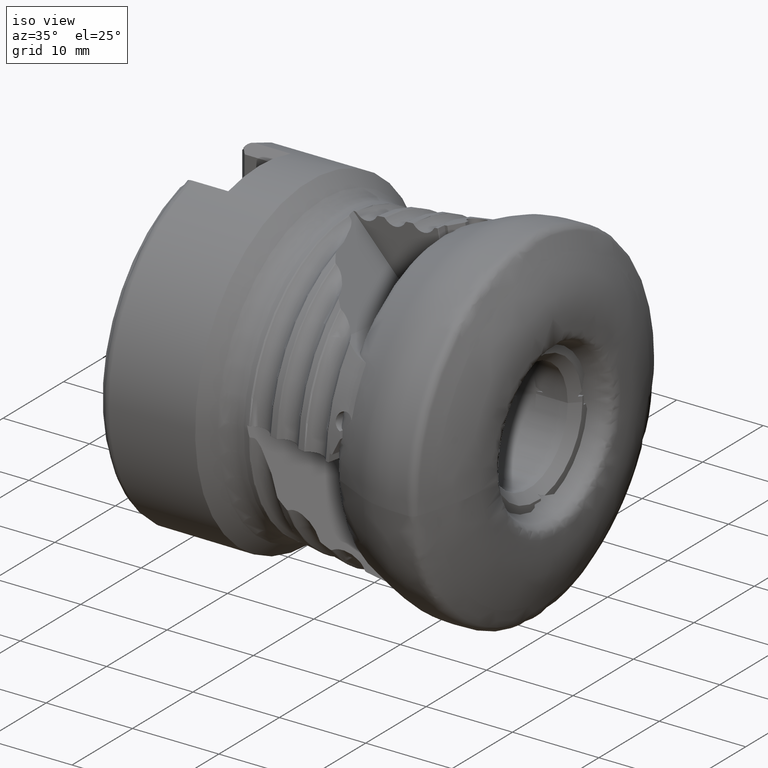
[diagram: clean part render]
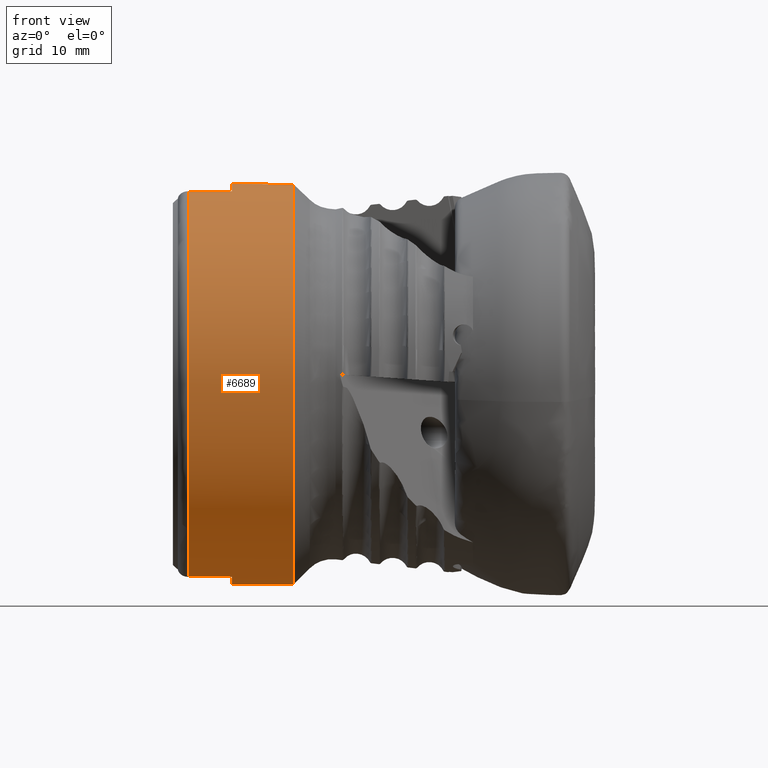
[diagram: tour spotlight — one face highlighted and labeled with its STEP entity id]
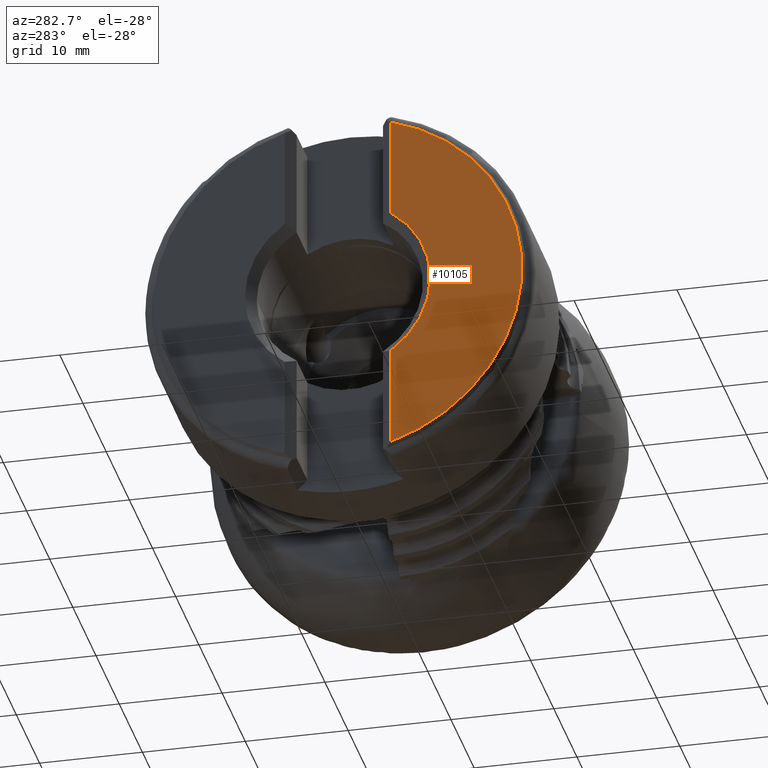
[diagram: tour spotlight — one face highlighted and labeled with its STEP entity id]
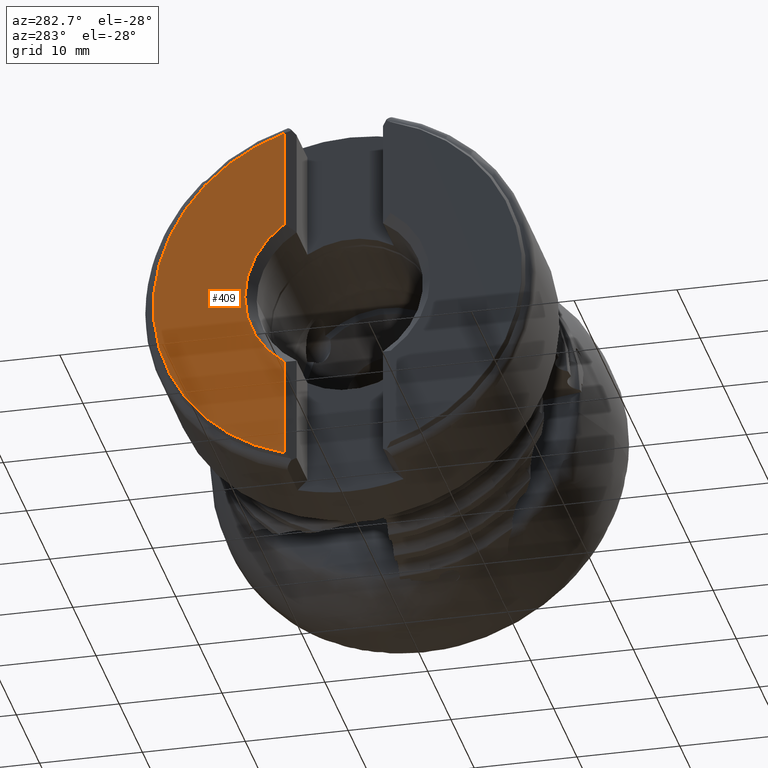
[diagram: tour spotlight — one face highlighted and labeled with its STEP entity id]
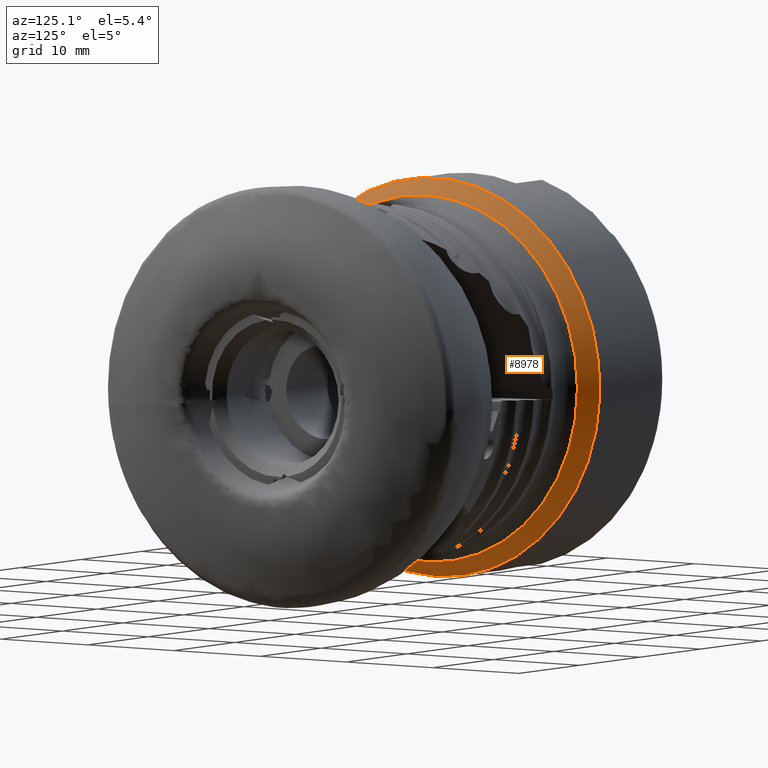
[diagram: tour spotlight — one face highlighted and labeled with its STEP entity id]
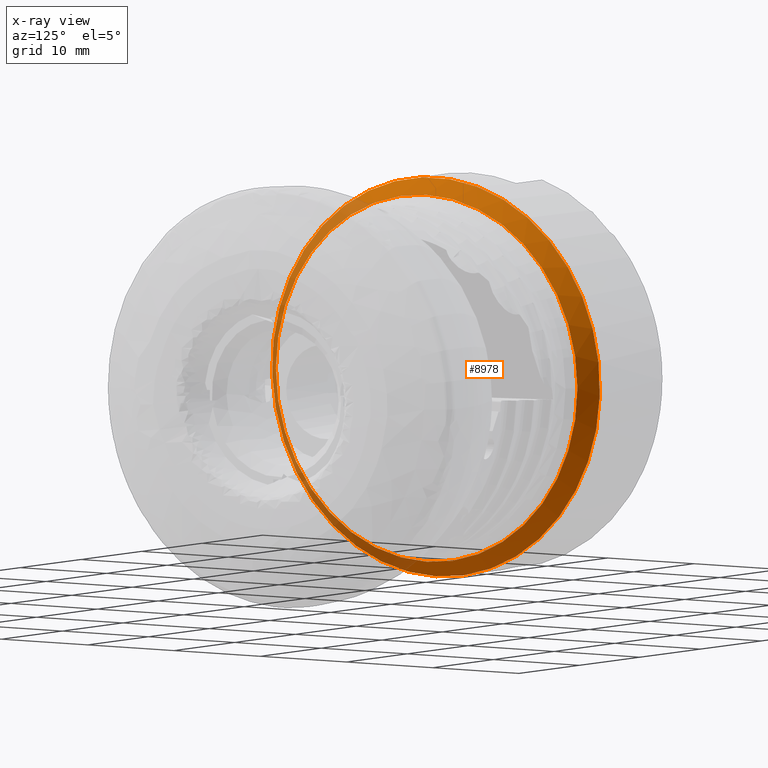
[diagram: x-ray of the same camera — body ghosted, this tour face saturated]
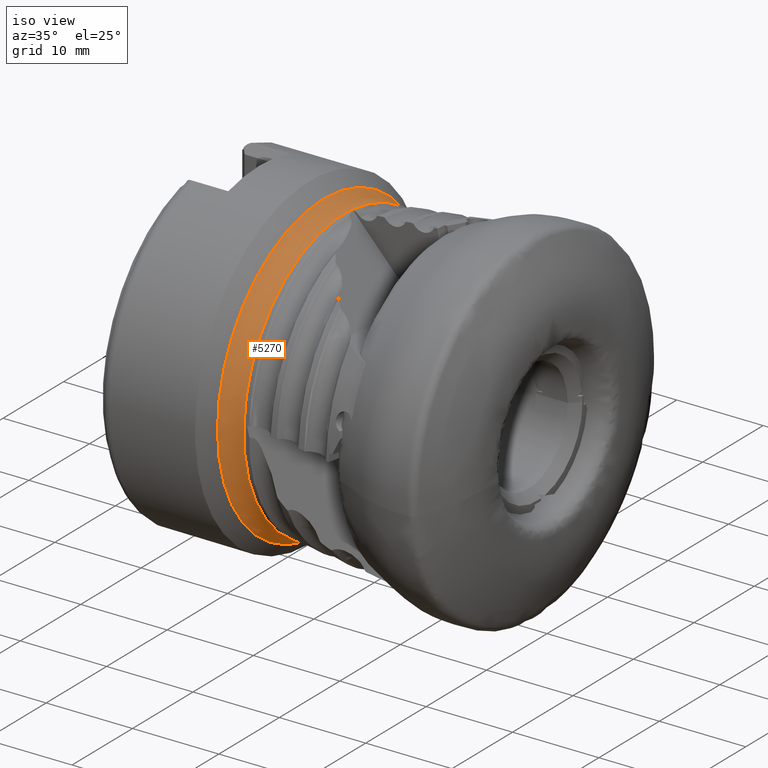
[diagram: tour spotlight — one face highlighted and labeled with its STEP entity id]
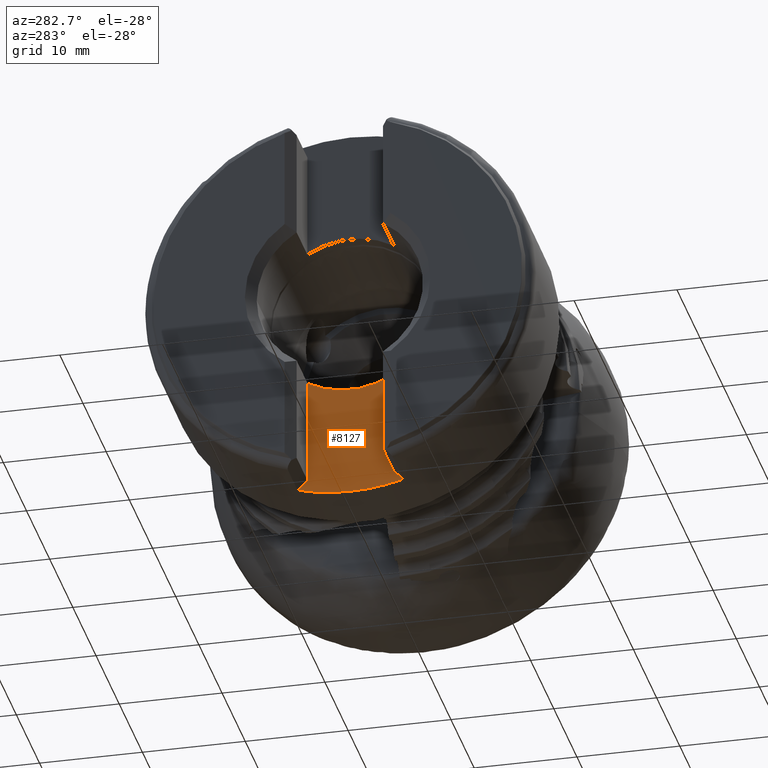
[diagram: tour spotlight — one face highlighted and labeled with its STEP entity id]
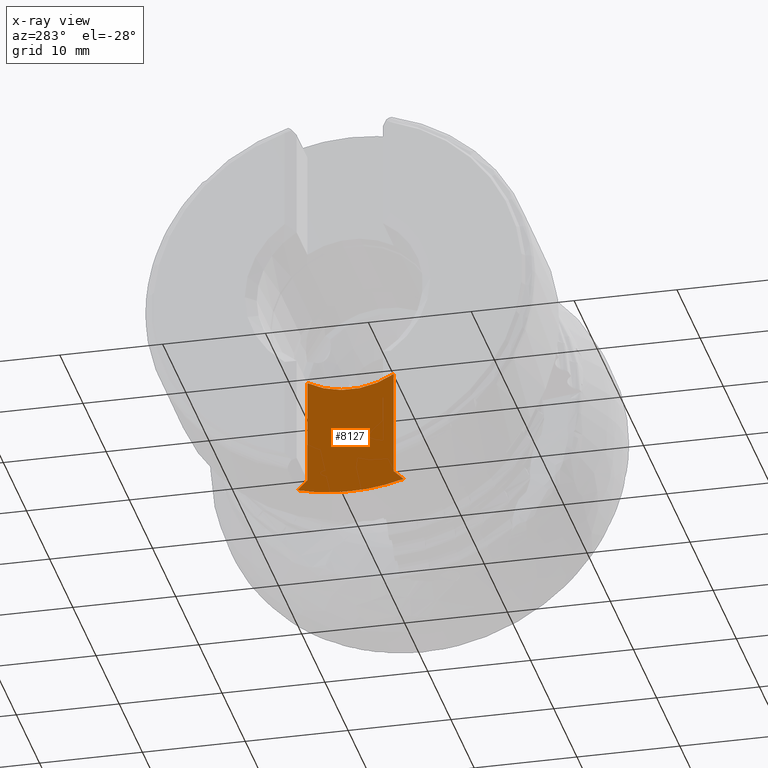
[diagram: x-ray of the same camera — body ghosted, this tour face saturated]
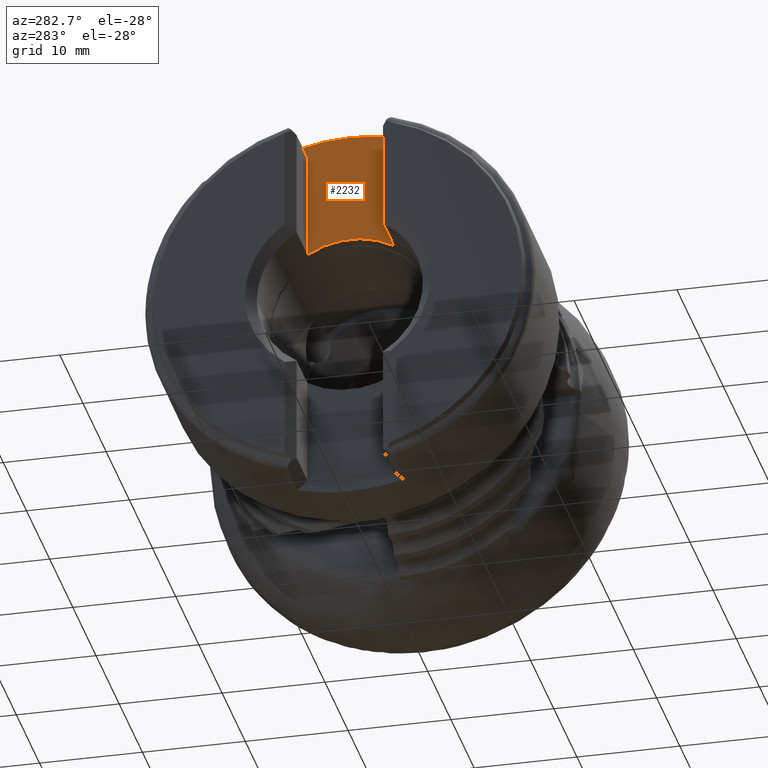
[diagram: tour spotlight — one face highlighted and labeled with its STEP entity id]
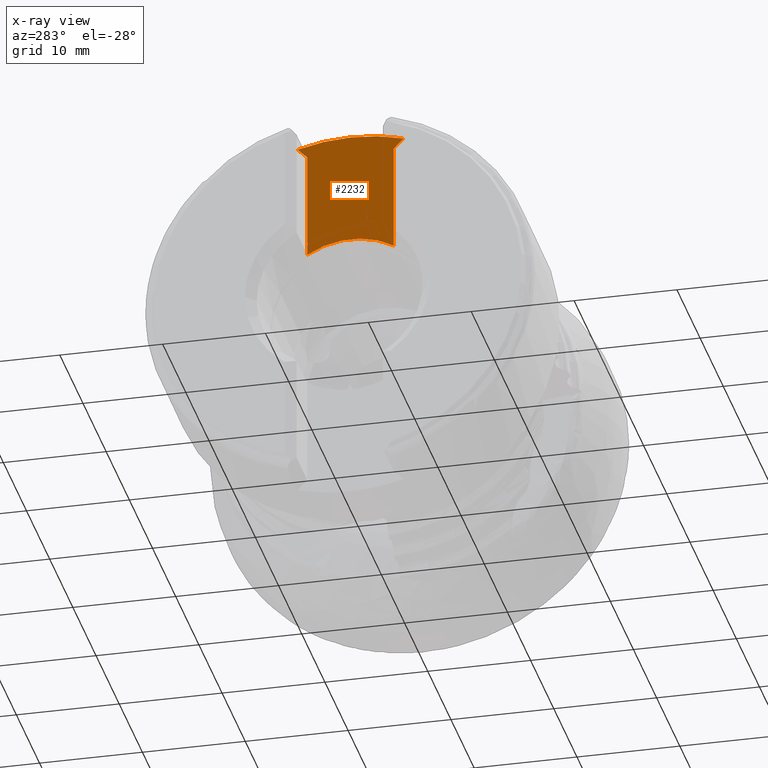
[diagram: x-ray of the same camera — body ghosted, this tour face saturated]
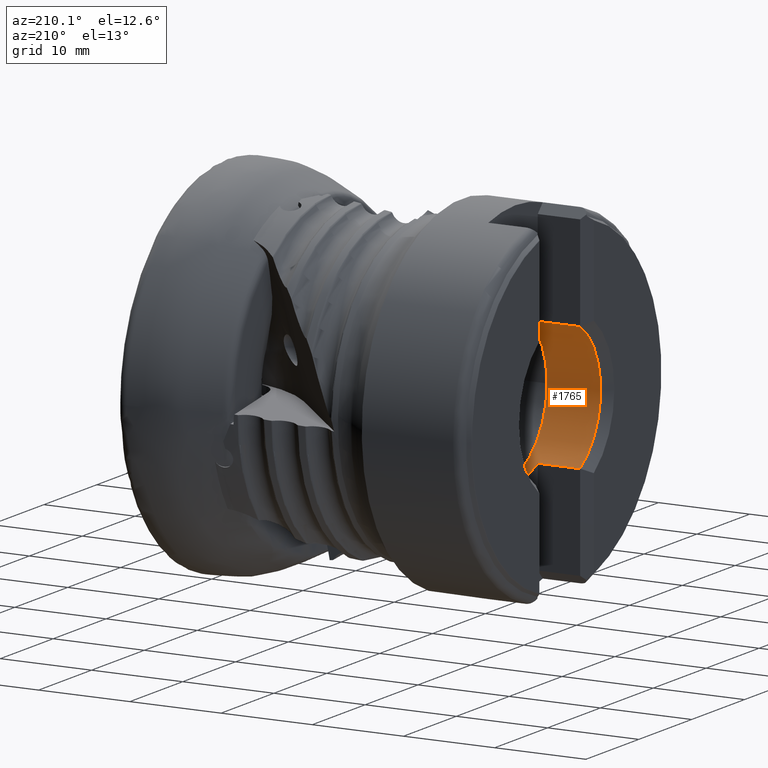
[diagram: tour spotlight — one face highlighted and labeled with its STEP entity id]
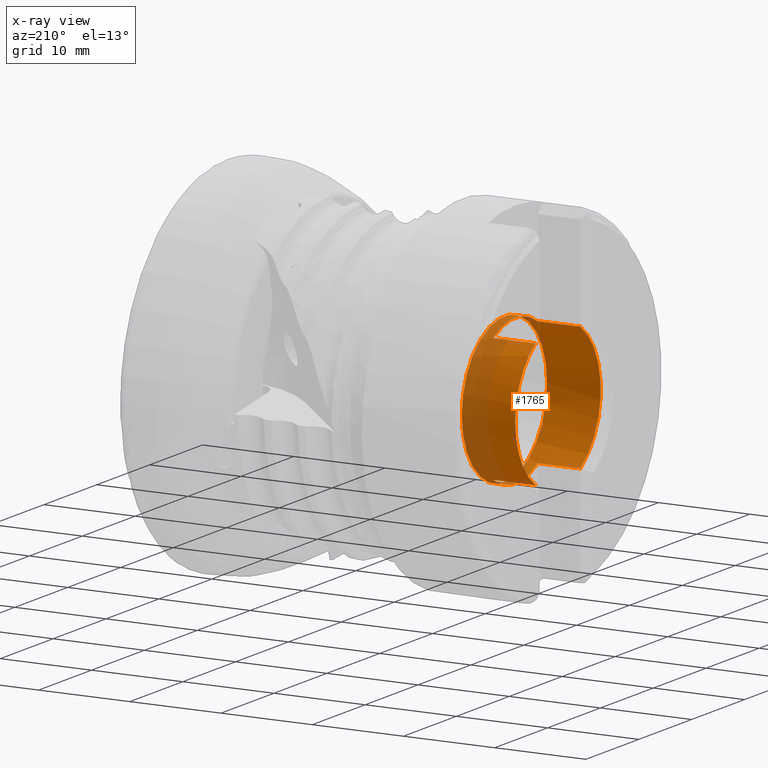
[diagram: x-ray of the same camera — body ghosted, this tour face saturated]
A machine part: a face-by-face anatomy tour. The part has 210 B-rep faces; the first image is the clean iso view, then the 8 largest visible faces are spotlighted one at a time (largest first), each with its STEP entity span.

Face 1 — front view, entity #6689. In plain terms, the highlighted cylindrical surface (bore or boss wall) has radius 19 mm, axis along (1, -0, -0).
Definition (entity closure, byte-faithful):
#51 = CARTESIAN_POINT ( 'NONE',  ( -27.45525917703946900, 0.0000000000000000000, 0.0000000000000000000 ) ) ;
#68 = EDGE_CURVE ( 'NONE', #3437, #1569, #3425, .T. ) ;
#271 = EDGE_CURVE ( 'NONE', #8111, #3437, #6373, .T. ) ;
#364 = CIRCLE ( 'NONE', #3989, 18.99999999999997500 ) ;
#368 = CARTESIAN_POINT ( 'NONE',  ( 0.0000000000000000000, 0.0000000000000000000, 0.0000000000000000000 ) ) ;
#519 = EDGE_CURVE ( 'NONE', #3034, #5623, #3052, .T. ) ;
#706 = CARTESIAN_POINT ( 'NONE',  ( -27.45525917703946900, 0.0000000000000000000, -18.99999999999997500 ) ) ;
#744 = CYLINDRICAL_SURFACE ( 'NONE', #9137, 18.99999999999997500 ) ;
#796 = CARTESIAN_POINT ( 'NONE',  ( -37.45525917703945900, 5.154084291463743000, 18.28757543023365500 ) ) ;
#827 = DIRECTION ( 'NONE',  ( 0.0000000000000000000, 0.0000000000000000000, -1.000000000000000000 ) ) ;
#922 = DIRECTION ( 'NONE',  ( -1.000000000000000000, 0.0000000000000000000, 0.0000000000000000000 ) ) ;
#973 = VECTOR ( 'NONE', #922, 1000.000000000000000 ) ;
#1038 = CARTESIAN_POINT ( 'NONE',  ( -37.45525917703945900, 5.154084291463743900, -18.28757543023366200 ) ) ;
#1067 = CARTESIAN_POINT ( 'NONE',  ( -1.176638563391784300E-030, -5.154084291463744800, -18.28757543023365900 ) ) ;
#1128 = EDGE_CURVE ( 'NONE', #5623, #5358, #10091, .T. ) ;
#1280 = DIRECTION ( 'NONE',  ( -1.000000000000000000, -0.0000000000000000000, -0.0000000000000000000 ) ) ;
#1294 = CARTESIAN_POINT ( 'NONE',  ( -37.45525917703945900, 0.0000000000000000000, 0.0000000000000000000 ) ) ;
#1335 = VECTOR ( 'NONE', #1853, 1000.000000000000000 ) ;
#1569 = VERTEX_POINT ( 'NONE', #6438 ) ;
#1598 = EDGE_CURVE ( 'Kante166', #5358, #7349, #8065, .T. ) ;
#1853 = DIRECTION ( 'NONE',  ( 1.000000000000000000, -0.0000000000000000000, -0.0000000000000000000 ) ) ;
#2085 = DIRECTION ( 'NONE',  ( 0.0000000000000000000, 0.0000000000000000000, -1.000000000000000000 ) ) ;
#2496 = CARTESIAN_POINT ( 'NONE',  ( -33.30525917703945300, 5.154084291463743000, -18.28757543023365900 ) ) ;
#2531 = CARTESIAN_POINT ( 'NONE',  ( -1.176638563391784300E-030, 5.154084291463737700, 18.28757543023365900 ) ) ;
#2553 = EDGE_CURVE ( 'NONE', #4841, #4841, #8568, .T. ) ;
#2633 = ORIENTED_EDGE ( 'NONE', *, *, #4658, .T. ) ;
#2637 = DIRECTION ( 'NONE',  ( 1.000000000000000000, -0.0000000000000000000, -0.0000000000000000000 ) ) ;
#2789 = ORIENTED_EDGE ( 'NONE', *, *, #7168, .F. ) ;
#2839 = AXIS2_PLACEMENT_3D ( 'NONE', #7330, #2637, #8128 ) ;
#2880 = CARTESIAN_POINT ( 'NONE',  ( -33.30525917703945300, 0.0000000000000000000, 0.0000000000000000000 ) ) ;
#3034 = VERTEX_POINT ( 'NONE', #2496 ) ;
#3052 = LINE ( 'NONE', #6374, #973 ) ;
#3073 = CARTESIAN_POINT ( 'NONE',  ( -33.30525917703945300, 5.154084291463743000, 18.28757543023365500 ) ) ;
#3084 = FACE_OUTER_BOUND ( 'NONE', #5858, .T. ) ;
#3160 = ORIENTED_EDGE ( 'NONE', *, *, #1598, .T. ) ;
#3403 = VECTOR ( 'NONE', #7260, 1000.000000000000000 ) ;
#3425 = LINE ( 'NONE', #1067, #1335 ) ;
#3437 = VERTEX_POINT ( 'NONE', #9297 ) ;
#3663 = DIRECTION ( 'NONE',  ( 0.0000000000000000000, 0.0000000000000000000, -1.000000000000000000 ) ) ;
#3872 = VECTOR ( 'NONE', #6270, 1000.000000000000000 ) ;
#3989 = AXIS2_PLACEMENT_3D ( 'NONE', #5979, #1280, #6755 ) ;
#4042 = EDGE_LOOP ( 'NONE', ( #8510 ) ) ;
#4139 = CARTESIAN_POINT ( 'NONE',  ( -37.45525917703945900, -5.154084291463749200, 18.28757543023365500 ) ) ;
#4459 = AXIS2_PLACEMENT_3D ( 'NONE', #1294, #6766, #2085 ) ;
#4658 = EDGE_CURVE ( 'NONE', #6695, #8111, #9923, .T. ) ;
#4805 = ORIENTED_EDGE ( 'NONE', *, *, #68, .T. ) ;
#4841 = VERTEX_POINT ( 'NONE', #706 ) ;
#4863 = AXIS2_PLACEMENT_3D ( 'NONE', #51, #5531, #827 ) ;
#5065 = DIRECTION ( 'NONE',  ( 1.000000000000000000, -0.0000000000000000000, -0.0000000000000000000 ) ) ;
#5358 = VERTEX_POINT ( 'NONE', #796 ) ;
#5531 = DIRECTION ( 'NONE',  ( 1.000000000000000000, -0.0000000000000000000, -0.0000000000000000000 ) ) ;
#5558 = CARTESIAN_POINT ( 'NONE',  ( -1.344729786733467900E-030, -5.154084291463744800, 18.28757543023366200 ) ) ;
#5623 = VERTEX_POINT ( 'NONE', #1038 ) ;
#5772 = ORIENTED_EDGE ( 'NONE', *, *, #1128, .T. ) ;
#5858 = EDGE_LOOP ( 'NONE', ( #5772, #3160, #2789, #2633, #9954, #4805, #6090, #7584 ) ) ;
#5979 = CARTESIAN_POINT ( 'NONE',  ( -33.30525917703945300, 0.0000000000000000000, 0.0000000000000000000 ) ) ;
#6090 = ORIENTED_EDGE ( 'NONE', *, *, #6165, .F. ) ;
#6165 = EDGE_CURVE ( 'Kante164', #3034, #1569, #8995, .T. ) ;
#6270 = DIRECTION ( 'NONE',  ( -1.000000000000000000, 0.0000000000000000000, 0.0000000000000000000 ) ) ;
#6373 = CIRCLE ( 'NONE', #4459, 18.99999999999997500 ) ;
#6374 = CARTESIAN_POINT ( 'NONE',  ( -1.344729786733467900E-030, 5.154084291463736800, -18.28757543023366200 ) ) ;
#6438 = CARTESIAN_POINT ( 'NONE',  ( -33.30525917703945300, -5.154084291463750100, -18.28757543023365500 ) ) ;
#6689 = ADVANCED_FACE ( 'NONE', ( #3084, #6987 ), #744, .T. ) ;
#6695 = VERTEX_POINT ( 'NONE', #9040 ) ;
#6755 = DIRECTION ( 'NONE',  ( 0.0000000000000000000, 3.552713678800500900E-015, -1.000000000000000000 ) ) ;
#6766 = DIRECTION ( 'NONE',  ( 1.000000000000000000, -0.0000000000000000000, -0.0000000000000000000 ) ) ;
#6987 = FACE_OUTER_BOUND ( 'NONE', #4042, .T. ) ;
#7168 = EDGE_CURVE ( 'NONE', #6695, #7349, #364, .T. ) ;
#7260 = DIRECTION ( 'NONE',  ( 1.000000000000000000, -0.0000000000000000000, -0.0000000000000000000 ) ) ;
#7330 = CARTESIAN_POINT ( 'NONE',  ( -37.45525917703945900, 0.0000000000000000000, 0.0000000000000000000 ) ) ;
#7349 = VERTEX_POINT ( 'NONE', #3073 ) ;
#7584 = ORIENTED_EDGE ( 'NONE', *, *, #519, .T. ) ;
#8065 = LINE ( 'NONE', #2531, #3403 ) ;
#8111 = VERTEX_POINT ( 'NONE', #4139 ) ;
#8128 = DIRECTION ( 'NONE',  ( 0.0000000000000000000, 0.0000000000000000000, -1.000000000000000000 ) ) ;
#8226 = DIRECTION ( 'NONE',  ( 0.0000000000000000000, 0.0000000000000000000, -1.000000000000000000 ) ) ;
#8247 = AXIS2_PLACEMENT_3D ( 'NONE', #2880, #8372, #3663 ) ;
#8372 = DIRECTION ( 'NONE',  ( -1.000000000000000000, -0.0000000000000000000, -0.0000000000000000000 ) ) ;
#8510 = ORIENTED_EDGE ( 'NONE', *, *, #2553, .F. ) ;
#8568 = CIRCLE ( 'NONE', #4863, 18.99999999999997500 ) ;
#8995 = CIRCLE ( 'NONE', #8247, 18.99999999999997500 ) ;
#9040 = CARTESIAN_POINT ( 'NONE',  ( -33.30525917703945300, -5.154084291463749200, 18.28757543023365500 ) ) ;
#9137 = AXIS2_PLACEMENT_3D ( 'NONE', #368, #5065, #8226 ) ;
#9297 = CARTESIAN_POINT ( 'NONE',  ( -37.45525917703945900, -5.154084291463751000, -18.28757543023365500 ) ) ;
#9923 = LINE ( 'NONE', #5558, #3872 ) ;
#9954 = ORIENTED_EDGE ( 'NONE', *, *, #271, .T. ) ;
#10091 = CIRCLE ( 'NONE', #2839, 18.99999999999997500 ) ;

Face 2 — auxiliary view, entity #10105. In plain terms, the highlighted planar face has unit normal (-1, 0, 0).
Definition (entity closure, byte-faithful):
#88 = VECTOR ( 'NONE', #9777, 1000.000000000000000 ) ;
#186 = CARTESIAN_POINT ( 'NONE',  ( -38.90525917703945400, -5.150000000000020800, -7.411351091400261400 ) ) ;
#264 = CARTESIAN_POINT ( 'NONE',  ( -38.90525917703945400, -5.150000000000020800, 7.411351091400262300 ) ) ;
#939 = ORIENTED_EDGE ( 'NONE', *, *, #2490, .T. ) ;
#958 = LINE ( 'NONE', #5397, #8820 ) ;
#1093 = CIRCLE ( 'NONE', #9093, 17.92228756555322300 ) ;
#1287 = CARTESIAN_POINT ( 'NONE',  ( -38.90525917703945400, -5.150000000000020800, -17.16641755237194300 ) ) ;
#1322 = CARTESIAN_POINT ( 'NONE',  ( -38.90525917703945400, 0.0000000000000000000, 0.0000000000000000000 ) ) ;
#2153 = LINE ( 'NONE', #8230, #88 ) ;
#2299 = AXIS2_PLACEMENT_3D ( 'NONE', #1322, #2936, #8419 ) ;
#2490 = EDGE_CURVE ( 'NONE', #8800, #3760, #958, .T. ) ;
#2766 = ORIENTED_EDGE ( 'NONE', *, *, #9089, .F. ) ;
#2936 = DIRECTION ( 'NONE',  ( -1.000000000000000000, 0.0000000000000000000, 0.0000000000000000000 ) ) ;
#3024 = CIRCLE ( 'NONE', #8707, 9.025000000000003900 ) ;
#3055 = CARTESIAN_POINT ( 'NONE',  ( -38.90525917703946100, -5.150000000000031400, 17.16641755237192900 ) ) ;
#3264 = DIRECTION ( 'NONE',  ( 1.000000000000000000, -0.0000000000000000000, -0.0000000000000000000 ) ) ;
#3346 = EDGE_CURVE ( 'NONE', #4910, #8800, #3024, .T. ) ;
#3612 = DIRECTION ( 'NONE',  ( 1.000000000000000000, -0.0000000000000000000, -0.0000000000000000000 ) ) ;
#3760 = VERTEX_POINT ( 'NONE', #1287 ) ;
#3885 = EDGE_LOOP ( 'NONE', ( #939, #2766, #5571, #6699 ) ) ;
#4910 = VERTEX_POINT ( 'NONE', #264 ) ;
#5397 = CARTESIAN_POINT ( 'NONE',  ( -38.90525917703945400, -5.150000000000020800, -35.00000000000000000 ) ) ;
#5571 = ORIENTED_EDGE ( 'NONE', *, *, #9275, .T. ) ;
#6174 = DIRECTION ( 'NONE',  ( 0.0000000000000000000, 0.0000000000000000000, -1.000000000000000000 ) ) ;
#6326 = VERTEX_POINT ( 'NONE', #3055 ) ;
#6699 = ORIENTED_EDGE ( 'NONE', *, *, #3346, .T. ) ;
#7630 = PLANE ( 'NONE',  #2299 ) ;
#7961 = CARTESIAN_POINT ( 'NONE',  ( -38.90525917703945400, 0.0000000000000000000, 0.0000000000000000000 ) ) ;
#8230 = CARTESIAN_POINT ( 'NONE',  ( -38.90525917703945400, -5.150000000000020800, -35.00000000000000000 ) ) ;
#8319 = CARTESIAN_POINT ( 'NONE',  ( -38.90525917703945400, -3.011444463842724400E-032, 1.424499028242644900E-031 ) ) ;
#8419 = DIRECTION ( 'NONE',  ( 0.0000000000000000000, 0.0000000000000000000, 1.000000000000000000 ) ) ;
#8707 = AXIS2_PLACEMENT_3D ( 'NONE', #8319, #3612, #9146 ) ;
#8766 = DIRECTION ( 'NONE',  ( 0.0000000000000000000, 0.0000000000000000000, 1.000000000000000000 ) ) ;
#8800 = VERTEX_POINT ( 'NONE', #186 ) ;
#8820 = VECTOR ( 'NONE', #6174, 1000.000000000000000 ) ;
#9089 = EDGE_CURVE ( 'NONE', #6326, #3760, #1093, .T. ) ;
#9093 = AXIS2_PLACEMENT_3D ( 'NONE', #7961, #3264, #8766 ) ;
#9146 = DIRECTION ( 'NONE',  ( 0.0000000000000000000, 0.0000000000000000000, 1.000000000000000000 ) ) ;
#9275 = EDGE_CURVE ( 'NONE', #6326, #4910, #2153, .T. ) ;
#9564 = FACE_OUTER_BOUND ( 'NONE', #3885, .T. ) ;
#9777 = DIRECTION ( 'NONE',  ( 0.0000000000000000000, 0.0000000000000000000, -1.000000000000000000 ) ) ;
#10105 = ADVANCED_FACE ( 'NONE', ( #9564 ), #7630, .T. ) ;

Face 3 — auxiliary view, entity #409. In plain terms, the highlighted planar face has unit normal (-1, 0, 0).
Definition (entity closure, byte-faithful):
#343 = ORIENTED_EDGE ( 'NONE', *, *, #3350, .T. ) ;
#409 = ADVANCED_FACE ( 'NONE', ( #3789 ), #1472, .T. ) ;
#597 = AXIS2_PLACEMENT_3D ( 'NONE', #6898, #2258, #7749 ) ;
#692 = CIRCLE ( 'NONE', #2704, 9.025000000000003900 ) ;
#833 = LINE ( 'NONE', #8184, #6822 ) ;
#945 = LINE ( 'NONE', #1258, #3277 ) ;
#1041 = VERTEX_POINT ( 'NONE', #9667 ) ;
#1258 = CARTESIAN_POINT ( 'NONE',  ( -38.90525917703945400, 5.150000000000010100, -35.00000000000000000 ) ) ;
#1265 = CARTESIAN_POINT ( 'NONE',  ( -38.90525917703945400, 5.150000000000010100, -17.16641755237194300 ) ) ;
#1472 = PLANE ( 'NONE',  #597 ) ;
#1742 = ORIENTED_EDGE ( 'NONE', *, *, #3475, .T. ) ;
#1785 = EDGE_CURVE ( 'NONE', #1041, #2405, #833, .T. ) ;
#1880 = VERTEX_POINT ( 'NONE', #1265 ) ;
#1906 = DIRECTION ( 'NONE',  ( 0.0000000000000000000, -0.0000000000000000000, 1.000000000000000000 ) ) ;
#2089 = DIRECTION ( 'NONE',  ( 1.000000000000000000, -0.0000000000000000000, -0.0000000000000000000 ) ) ;
#2126 = AXIS2_PLACEMENT_3D ( 'NONE', #6768, #2089, #7576 ) ;
#2258 = DIRECTION ( 'NONE',  ( -1.000000000000000000, 0.0000000000000000000, 0.0000000000000000000 ) ) ;
#2262 = CARTESIAN_POINT ( 'NONE',  ( -38.90525917703945400, -3.011444463842724400E-032, 1.424499028242644900E-031 ) ) ;
#2405 = VERTEX_POINT ( 'NONE', #4485 ) ;
#2704 = AXIS2_PLACEMENT_3D ( 'NONE', #2262, #7756, #3051 ) ;
#3051 = DIRECTION ( 'NONE',  ( 0.0000000000000000000, 0.0000000000000000000, 1.000000000000000000 ) ) ;
#3277 = VECTOR ( 'NONE', #5945, 1000.000000000000000 ) ;
#3350 = EDGE_CURVE ( 'NONE', #1880, #6844, #945, .T. ) ;
#3475 = EDGE_CURVE ( 'NONE', #6844, #1041, #692, .T. ) ;
#3720 = CARTESIAN_POINT ( 'NONE',  ( -38.90525917703945400, 5.150000000000010100, -7.411351091400269400 ) ) ;
#3789 = FACE_OUTER_BOUND ( 'NONE', #7058, .T. ) ;
#4218 = ORIENTED_EDGE ( 'NONE', *, *, #1785, .T. ) ;
#4485 = CARTESIAN_POINT ( 'NONE',  ( -38.90525917703945400, 5.150000000000010100, 17.16641755237194300 ) ) ;
#4752 = ORIENTED_EDGE ( 'NONE', *, *, #5786, .F. ) ;
#5786 = EDGE_CURVE ( 'Kante161', #1880, #2405, #9674, .T. ) ;
#5945 = DIRECTION ( 'NONE',  ( 0.0000000000000000000, -0.0000000000000000000, 1.000000000000000000 ) ) ;
#6768 = CARTESIAN_POINT ( 'NONE',  ( -38.90525917703945400, 0.0000000000000000000, 0.0000000000000000000 ) ) ;
#6822 = VECTOR ( 'NONE', #1906, 1000.000000000000000 ) ;
#6844 = VERTEX_POINT ( 'NONE', #3720 ) ;
#6898 = CARTESIAN_POINT ( 'NONE',  ( -38.90525917703945400, 0.0000000000000000000, 0.0000000000000000000 ) ) ;
#7058 = EDGE_LOOP ( 'NONE', ( #343, #1742, #4218, #4752 ) ) ;
#7576 = DIRECTION ( 'NONE',  ( 0.0000000000000000000, 0.0000000000000000000, 1.000000000000000000 ) ) ;
#7749 = DIRECTION ( 'NONE',  ( 0.0000000000000000000, 0.0000000000000000000, 1.000000000000000000 ) ) ;
#7756 = DIRECTION ( 'NONE',  ( 1.000000000000000000, -0.0000000000000000000, -0.0000000000000000000 ) ) ;
#8184 = CARTESIAN_POINT ( 'NONE',  ( -38.90525917703945400, 5.150000000000010100, -35.00000000000000000 ) ) ;
#9667 = CARTESIAN_POINT ( 'NONE',  ( -38.90525917703945400, 5.150000000000010100, 7.411351091400270300 ) ) ;
#9674 = CIRCLE ( 'NONE', #2126, 17.92228756555322300 ) ;

Face 4 — auxiliary view, entity #8978. An x-ray twin of the same camera follows (body ghosted, this face saturated) — the face is partly hidden behind the body. In plain terms, the highlighted conical surface has half-angle 44.691 deg.
Definition (entity closure, byte-faithful):
#51 = CARTESIAN_POINT ( 'NONE',  ( -27.45525917703946900, 0.0000000000000000000, 0.0000000000000000000 ) ) ;
#366 = ORIENTED_EDGE ( 'NONE', *, *, #7074, .F. ) ;
#592 = CONICAL_SURFACE ( 'NONE', #8010, 17.48087253499999600, 0.7800126432564450400 ) ;
#706 = CARTESIAN_POINT ( 'NONE',  ( -27.45525917703946900, 0.0000000000000000000, -18.99999999999997500 ) ) ;
#827 = DIRECTION ( 'NONE',  ( 0.0000000000000000000, 0.0000000000000000000, -1.000000000000000000 ) ) ;
#845 = FACE_BOUND ( 'NONE', #9545, .T. ) ;
#1186 = CARTESIAN_POINT ( 'NONE',  ( -25.91968037084017200, 0.0000000000000000000, 0.0000000000000000000 ) ) ;
#1873 = AXIS2_PLACEMENT_3D ( 'NONE', #1186, #6653, #1975 ) ;
#1975 = DIRECTION ( 'NONE',  ( 0.0000000000000000000, 0.0000000000000000000, -1.000000000000000000 ) ) ;
#2553 = EDGE_CURVE ( 'NONE', #4841, #4841, #8568, .T. ) ;
#2925 = FACE_OUTER_BOUND ( 'NONE', #10070, .T. ) ;
#4496 = ORIENTED_EDGE ( 'NONE', *, *, #2553, .T. ) ;
#4536 = CIRCLE ( 'NONE', #1873, 17.48087253499999600 ) ;
#4841 = VERTEX_POINT ( 'NONE', #706 ) ;
#4863 = AXIS2_PLACEMENT_3D ( 'NONE', #51, #5531, #827 ) ;
#5531 = DIRECTION ( 'NONE',  ( 1.000000000000000000, -0.0000000000000000000, -0.0000000000000000000 ) ) ;
#6251 = DIRECTION ( 'NONE',  ( 0.0000000000000000000, 0.0000000000000000000, 1.000000000000000000 ) ) ;
#6653 = DIRECTION ( 'NONE',  ( 1.000000000000000000, -0.0000000000000000000, -0.0000000000000000000 ) ) ;
#6664 = VERTEX_POINT ( 'NONE', #7772 ) ;
#6907 = CARTESIAN_POINT ( 'NONE',  ( -25.91968037084017200, 0.0000000000000000000, 0.0000000000000000000 ) ) ;
#7074 = EDGE_CURVE ( 'NONE', #6664, #6664, #4536, .T. ) ;
#7772 = CARTESIAN_POINT ( 'NONE',  ( -25.91968037084017200, 0.0000000000000000000, -17.48087253499999600 ) ) ;
#7829 = DIRECTION ( 'NONE',  ( -1.000000000000000000, 0.0000000000000000000, 0.0000000000000000000 ) ) ;
#8010 = AXIS2_PLACEMENT_3D ( 'NONE', #6907, #7829, #6251 ) ;
#8568 = CIRCLE ( 'NONE', #4863, 18.99999999999997500 ) ;
#8978 = ADVANCED_FACE ( 'NONE', ( #2925, #845 ), #592, .T. ) ;
#9545 = EDGE_LOOP ( 'NONE', ( #366 ) ) ;
#10070 = EDGE_LOOP ( 'NONE', ( #4496 ) ) ;

Face 5 — iso view, entity #5270. In plain terms, the highlighted toroidal blend (fillet) surface has major radius 19.6136 mm and minor (blend) radius 3 mm.
Definition (entity closure, byte-faithful):
#209 = EDGE_LOOP ( 'NONE', ( #3427 ) ) ;
#330 = CIRCLE ( 'NONE', #8965, 16.63267273497152100 ) ;
#646 = DIRECTION ( 'NONE',  ( 0.0000000000000000000, 0.0000000000000000000, -1.000000000000000000 ) ) ;
#1186 = CARTESIAN_POINT ( 'NONE',  ( -25.91968037084017200, 0.0000000000000000000, 0.0000000000000000000 ) ) ;
#1873 = AXIS2_PLACEMENT_3D ( 'NONE', #1186, #6653, #1975 ) ;
#1964 = EDGE_CURVE ( 'NONE', #5087, #5087, #330, .T. ) ;
#1975 = DIRECTION ( 'NONE',  ( 0.0000000000000000000, 0.0000000000000000000, -1.000000000000000000 ) ) ;
#3427 = ORIENTED_EDGE ( 'NONE', *, *, #7074, .T. ) ;
#4063 = ORIENTED_EDGE ( 'NONE', *, *, #1964, .F. ) ;
#4536 = CIRCLE ( 'NONE', #1873, 17.48087253499999600 ) ;
#5087 = VERTEX_POINT ( 'NONE', #5416 ) ;
#5270 = ADVANCED_FACE ( 'NONE', ( #7660, #7405 ), #5338, .F. ) ;
#5338 = TOROIDAL_SURFACE ( 'NONE', #8302, 19.61358647364021500, 2.999999999999998200 ) ;
#5341 = DIRECTION ( 'NONE',  ( 1.000000000000000000, -0.0000000000000000000, -0.0000000000000000000 ) ) ;
#5416 = CARTESIAN_POINT ( 'NONE',  ( -23.47194937258531100, 0.0000000000000000000, -16.63267273497152100 ) ) ;
#6653 = DIRECTION ( 'NONE',  ( 1.000000000000000000, -0.0000000000000000000, -0.0000000000000000000 ) ) ;
#6664 = VERTEX_POINT ( 'NONE', #7772 ) ;
#7074 = EDGE_CURVE ( 'NONE', #6664, #6664, #4536, .T. ) ;
#7405 = FACE_OUTER_BOUND ( 'NONE', #9329, .T. ) ;
#7660 = FACE_OUTER_BOUND ( 'NONE', #209, .T. ) ;
#7689 = CARTESIAN_POINT ( 'NONE',  ( -23.80981514862106300, 0.0000000000000000000, 0.0000000000000000000 ) ) ;
#7772 = CARTESIAN_POINT ( 'NONE',  ( -25.91968037084017200, 0.0000000000000000000, -17.48087253499999600 ) ) ;
#8302 = AXIS2_PLACEMENT_3D ( 'NONE', #7689, #9351, #10155 ) ;
#8965 = AXIS2_PLACEMENT_3D ( 'NONE', #10089, #5341, #646 ) ;
#9329 = EDGE_LOOP ( 'NONE', ( #4063 ) ) ;
#9351 = DIRECTION ( 'NONE',  ( 1.000000000000000000, -0.0000000000000000000, -0.0000000000000000000 ) ) ;
#10089 = CARTESIAN_POINT ( 'NONE',  ( -23.47194937258531100, 0.0000000000000000000, 0.0000000000000000000 ) ) ;
#10155 = DIRECTION ( 'NONE',  ( 0.0000000000000000000, 0.0000000000000000000, -1.000000000000000000 ) ) ;

Face 6 — auxiliary view, entity #8127. An x-ray twin of the same camera follows (body ghosted, this face saturated) — the face is partly hidden behind the body. In plain terms, the highlighted planar face has unit normal (1, 0, 0).
Definition (entity closure, byte-faithful):
#118 = LINE ( 'NONE', #8097, #1704 ) ;
#327 = ORIENTED_EDGE ( 'NONE', *, *, #1111, .F. ) ;
#467 = CARTESIAN_POINT ( 'NONE',  ( -33.30525917703945300, 4.199999999999995700, -17.32582944009227400 ) ) ;
#517 = DIRECTION ( 'NONE',  ( -0.0000000000000000000, 0.7042733211068733500, -0.7099289324834526800 ) ) ;
#584 = CARTESIAN_POINT ( 'NONE',  ( -33.30525917703945300, -8.870394966561589100, -22.03372964519465100 ) ) ;
#642 = CARTESIAN_POINT ( 'NONE',  ( -33.30525917703945300, 4.199999999999995700, -6.896783670668521700 ) ) ;
#801 = ORIENTED_EDGE ( 'NONE', *, *, #6236, .T. ) ;
#1045 = PLANE ( 'NONE',  #6009 ) ;
#1111 = EDGE_CURVE ( 'NONE', #4255, #7862, #118, .T. ) ;
#1365 = ORIENTED_EDGE ( 'NONE', *, *, #8283, .F. ) ;
#1372 = DIRECTION ( 'NONE',  ( -0.0000000000000000000, 0.7042733211068702400, 0.7099289324834557900 ) ) ;
#1569 = VERTEX_POINT ( 'NONE', #6438 ) ;
#1704 = VECTOR ( 'NONE', #3398, 1000.000000000000000 ) ;
#1835 = DIRECTION ( 'NONE',  ( 1.000000000000000000, 0.0000000000000000000, 0.0000000000000000000 ) ) ;
#2083 = AXIS2_PLACEMENT_3D ( 'NONE', #7648, #2964, #8449 ) ;
#2288 = ORIENTED_EDGE ( 'NONE', *, *, #6165, .T. ) ;
#2496 = CARTESIAN_POINT ( 'NONE',  ( -33.30525917703945300, 5.154084291463743000, -18.28757543023365900 ) ) ;
#2710 = LINE ( 'NONE', #584, #8484 ) ;
#2880 = CARTESIAN_POINT ( 'NONE',  ( -33.30525917703945300, 0.0000000000000000000, 0.0000000000000000000 ) ) ;
#2964 = DIRECTION ( 'NONE',  ( -1.000000000000000000, -0.0000000000000000000, -0.0000000000000000000 ) ) ;
#3034 = VERTEX_POINT ( 'NONE', #2496 ) ;
#3132 = CARTESIAN_POINT ( 'NONE',  ( -33.30525917703945300, -4.200000000000003700, -6.896783670668520800 ) ) ;
#3398 = DIRECTION ( 'NONE',  ( -0.0000000000000000000, -0.0000000000000000000, 1.000000000000000000 ) ) ;
#3663 = DIRECTION ( 'NONE',  ( 0.0000000000000000000, 0.0000000000000000000, -1.000000000000000000 ) ) ;
#3765 = CARTESIAN_POINT ( 'NONE',  ( -33.30525917703945300, -4.200000000000003700, -35.00000000000000000 ) ) ;
#4255 = VERTEX_POINT ( 'NONE', #467 ) ;
#4783 = FACE_OUTER_BOUND ( 'NONE', #6816, .T. ) ;
#4801 = VECTOR ( 'NONE', #517, 1000.000000000000100 ) ;
#5346 = VERTEX_POINT ( 'NONE', #3132 ) ;
#5684 = CARTESIAN_POINT ( 'NONE',  ( -33.30525917703945300, 4.199999999999995700, -35.00000000000000000 ) ) ;
#5949 = LINE ( 'NONE', #3765, #10195 ) ;
#6009 = AXIS2_PLACEMENT_3D ( 'NONE', #5684, #1835, #7308 ) ;
#6122 = CIRCLE ( 'NONE', #2083, 8.074999999999995700 ) ;
#6165 = EDGE_CURVE ( 'Kante164', #3034, #1569, #8995, .T. ) ;
#6167 = EDGE_CURVE ( 'Kante49', #4255, #3034, #6861, .T. ) ;
#6236 = EDGE_CURVE ( 'NONE', #1569, #9483, #2710, .T. ) ;
#6438 = CARTESIAN_POINT ( 'NONE',  ( -33.30525917703945300, -5.154084291463750100, -18.28757543023365500 ) ) ;
#6816 = EDGE_LOOP ( 'NONE', ( #2288, #801, #8194, #1365, #327, #9675 ) ) ;
#6861 = LINE ( 'NONE', #7578, #4801 ) ;
#7308 = DIRECTION ( 'NONE',  ( 0.0000000000000000000, 0.0000000000000000000, -1.000000000000000000 ) ) ;
#7578 = CARTESIAN_POINT ( 'NONE',  ( -33.30525917703945300, 13.03680261747394200, -26.23359530424639300 ) ) ;
#7648 = CARTESIAN_POINT ( 'NONE',  ( -33.30525917703945300, -9.651966249635441900E-032, 0.0000000000000000000 ) ) ;
#7862 = VERTEX_POINT ( 'NONE', #642 ) ;
#8097 = CARTESIAN_POINT ( 'NONE',  ( -33.30525917703945300, 4.199999999999995700, -35.00000000000000000 ) ) ;
#8127 = ADVANCED_FACE ( 'NONE', ( #4783 ), #1045, .F. ) ;
#8194 = ORIENTED_EDGE ( 'NONE', *, *, #9894, .T. ) ;
#8247 = AXIS2_PLACEMENT_3D ( 'NONE', #2880, #8372, #3663 ) ;
#8283 = EDGE_CURVE ( 'NONE', #7862, #5346, #6122, .T. ) ;
#8372 = DIRECTION ( 'NONE',  ( -1.000000000000000000, -0.0000000000000000000, -0.0000000000000000000 ) ) ;
#8449 = DIRECTION ( 'NONE',  ( 0.0000000000000000000, 0.0000000000000000000, -1.000000000000000000 ) ) ;
#8470 = DIRECTION ( 'NONE',  ( -0.0000000000000000000, -0.0000000000000000000, 1.000000000000000000 ) ) ;
#8484 = VECTOR ( 'NONE', #1372, 1000.000000000000100 ) ;
#8507 = CARTESIAN_POINT ( 'NONE',  ( -33.30525917703945300, -4.200000000000003700, -17.32582944009226700 ) ) ;
#8995 = CIRCLE ( 'NONE', #8247, 18.99999999999997500 ) ;
#9483 = VERTEX_POINT ( 'NONE', #8507 ) ;
#9675 = ORIENTED_EDGE ( 'NONE', *, *, #6167, .T. ) ;
#9894 = EDGE_CURVE ( 'NONE', #9483, #5346, #5949, .T. ) ;
#10195 = VECTOR ( 'NONE', #8470, 1000.000000000000000 ) ;

Face 7 — auxiliary view, entity #2232. An x-ray twin of the same camera follows (body ghosted, this face saturated) — the face is partly hidden behind the body. In plain terms, the highlighted planar face has unit normal (1, 0, 0).
Definition (entity closure, byte-faithful):
#364 = CIRCLE ( 'NONE', #3989, 18.99999999999997500 ) ;
#605 = DIRECTION ( 'NONE',  ( 0.0000000000000000000, 1.776356839400250500E-015, -1.000000000000000000 ) ) ;
#659 = AXIS2_PLACEMENT_3D ( 'NONE', #9133, #3574, #5188 ) ;
#807 = CARTESIAN_POINT ( 'NONE',  ( -33.30525917703945300, -4.200000000000003700, 6.896783670668517300 ) ) ;
#963 = EDGE_LOOP ( 'NONE', ( #2698, #3435, #1956, #3278, #8408, #8124 ) ) ;
#1280 = DIRECTION ( 'NONE',  ( -1.000000000000000000, -0.0000000000000000000, -0.0000000000000000000 ) ) ;
#1626 = CARTESIAN_POINT ( 'NONE',  ( -33.30525917703945300, 4.199999999999995700, 6.896783670668521700 ) ) ;
#1956 = ORIENTED_EDGE ( 'NONE', *, *, #6250, .F. ) ;
#2232 = ADVANCED_FACE ( 'NONE', ( #6938 ), #9922, .F. ) ;
#2468 = LINE ( 'NONE', #3697, #4305 ) ;
#2573 = VERTEX_POINT ( 'NONE', #1626 ) ;
#2698 = ORIENTED_EDGE ( 'NONE', *, *, #7168, .T. ) ;
#2999 = DIRECTION ( 'NONE',  ( -0.0000000000000000000, -0.0000000000000000000, 1.000000000000000000 ) ) ;
#3073 = CARTESIAN_POINT ( 'NONE',  ( -33.30525917703945300, 5.154084291463743000, 18.28757543023365500 ) ) ;
#3269 = VECTOR ( 'NONE', #9330, 1000.000000000000100 ) ;
#3278 = ORIENTED_EDGE ( 'NONE', *, *, #7808, .F. ) ;
#3435 = ORIENTED_EDGE ( 'NONE', *, *, #9302, .T. ) ;
#3563 = CARTESIAN_POINT ( 'NONE',  ( -33.30525917703945300, -21.96207787462456200, -9.046340938150240900 ) ) ;
#3574 = DIRECTION ( 'NONE',  ( 1.000000000000000000, 0.0000000000000000000, 0.0000000000000000000 ) ) ;
#3697 = CARTESIAN_POINT ( 'NONE',  ( -33.30525917703945300, 4.199999999999995700, -35.00000000000000000 ) ) ;
#3929 = CIRCLE ( 'NONE', #5170, 8.074999999999995700 ) ;
#3989 = AXIS2_PLACEMENT_3D ( 'NONE', #5979, #1280, #6755 ) ;
#4305 = VECTOR ( 'NONE', #4484, 1000.000000000000000 ) ;
#4484 = DIRECTION ( 'NONE',  ( -0.0000000000000000000, -0.0000000000000000000, 1.000000000000000000 ) ) ;
#5170 = AXIS2_PLACEMENT_3D ( 'NONE', #10042, #5307, #605 ) ;
#5188 = DIRECTION ( 'NONE',  ( 0.0000000000000000000, 0.0000000000000000000, -1.000000000000000000 ) ) ;
#5307 = DIRECTION ( 'NONE',  ( -1.000000000000000000, -0.0000000000000000000, -0.0000000000000000000 ) ) ;
#5334 = CARTESIAN_POINT ( 'NONE',  ( -33.30525917703945300, -4.200000000000003700, -35.00000000000000000 ) ) ;
#5354 = LINE ( 'NONE', #7709, #3269 ) ;
#5525 = LINE ( 'NONE', #5334, #9495 ) ;
#5568 = CARTESIAN_POINT ( 'NONE',  ( -33.30525917703945300, 4.199999999999995700, 17.32582944009227400 ) ) ;
#5979 = CARTESIAN_POINT ( 'NONE',  ( -33.30525917703945300, 0.0000000000000000000, 0.0000000000000000000 ) ) ;
#6080 = VECTOR ( 'NONE', #9085, 1000.000000000000100 ) ;
#6250 = EDGE_CURVE ( 'NONE', #2573, #6478, #2468, .T. ) ;
#6478 = VERTEX_POINT ( 'NONE', #5568 ) ;
#6695 = VERTEX_POINT ( 'NONE', #9040 ) ;
#6755 = DIRECTION ( 'NONE',  ( 0.0000000000000000000, 3.552713678800500900E-015, -1.000000000000000000 ) ) ;
#6929 = VERTEX_POINT ( 'NONE', #807 ) ;
#6938 = FACE_OUTER_BOUND ( 'NONE', #963, .T. ) ;
#7168 = EDGE_CURVE ( 'NONE', #6695, #7349, #364, .T. ) ;
#7349 = VERTEX_POINT ( 'NONE', #3073 ) ;
#7709 = CARTESIAN_POINT ( 'NONE',  ( -33.30525917703945300, 26.12848552553691000, -13.24620659720230400 ) ) ;
#7742 = VERTEX_POINT ( 'NONE', #9840 ) ;
#7808 = EDGE_CURVE ( 'NONE', #6929, #2573, #3929, .T. ) ;
#7886 = EDGE_CURVE ( 'NONE', #6929, #7742, #5525, .T. ) ;
#8124 = ORIENTED_EDGE ( 'NONE', *, *, #9485, .T. ) ;
#8408 = ORIENTED_EDGE ( 'NONE', *, *, #7886, .T. ) ;
#9040 = CARTESIAN_POINT ( 'NONE',  ( -33.30525917703945300, -5.154084291463749200, 18.28757543023365500 ) ) ;
#9085 = DIRECTION ( 'NONE',  ( 0.0000000000000000000, -0.7042733211068733500, -0.7099289324834526800 ) ) ;
#9133 = CARTESIAN_POINT ( 'NONE',  ( -33.30525917703945300, 4.199999999999995700, -35.00000000000000000 ) ) ;
#9302 = EDGE_CURVE ( 'NONE', #7349, #6478, #10062, .T. ) ;
#9330 = DIRECTION ( 'NONE',  ( -0.0000000000000000000, -0.7042733211068702400, 0.7099289324834557900 ) ) ;
#9485 = EDGE_CURVE ( 'NONE', #7742, #6695, #5354, .T. ) ;
#9495 = VECTOR ( 'NONE', #2999, 1000.000000000000000 ) ;
#9840 = CARTESIAN_POINT ( 'NONE',  ( -33.30525917703945300, -4.200000000000003700, 17.32582944009227100 ) ) ;
#9922 = PLANE ( 'NONE',  #659 ) ;
#10042 = CARTESIAN_POINT ( 'NONE',  ( -33.30525917703945300, -9.651966249635441900E-032, 0.0000000000000000000 ) ) ;
#10062 = LINE ( 'NONE', #3563, #6080 ) ;

Face 8 — auxiliary view, entity #1765. An x-ray twin of the same camera follows (body ghosted, this face saturated) — the face is partly hidden behind the body. In plain terms, the highlighted cylindrical surface (bore or boss wall) has radius 8.075 mm, axis along (1, -0, -0).
Definition (entity closure, byte-faithful):
#8 = CARTESIAN_POINT ( 'NONE',  ( -37.95525917703945900, 4.199999999999996600, -6.896783670668520800 ) ) ;
#66 = ORIENTED_EDGE ( 'NONE', *, *, #8283, .T. ) ;
#164 = EDGE_CURVE ( 'Kante3', #5001, #6929, #8969, .T. ) ;
#255 = EDGE_CURVE ( 'NONE', #5001, #2712, #4515, .T. ) ;
#326 = DIRECTION ( 'NONE',  ( -1.000000000000000000, 1.428069201245745700E-032, 0.0000000000000000000 ) ) ;
#335 = CARTESIAN_POINT ( 'NONE',  ( 0.3947408229605455200, -4.199999999999998400, 6.896783670668519900 ) ) ;
#605 = DIRECTION ( 'NONE',  ( 0.0000000000000000000, 1.776356839400250500E-015, -1.000000000000000000 ) ) ;
#642 = CARTESIAN_POINT ( 'NONE',  ( -33.30525917703945300, 4.199999999999995700, -6.896783670668521700 ) ) ;
#807 = CARTESIAN_POINT ( 'NONE',  ( -33.30525917703945300, -4.200000000000003700, 6.896783670668517300 ) ) ;
#829 = ORIENTED_EDGE ( 'NONE', *, *, #255, .F. ) ;
#1078 = FACE_OUTER_BOUND ( 'NONE', #8225, .T. ) ;
#1167 = LINE ( 'NONE', #5407, #7171 ) ;
#1433 = ORIENTED_EDGE ( 'NONE', *, *, #2535, .F. ) ;
#1453 = DIRECTION ( 'NONE',  ( -1.000000000000000000, 1.428069201245745700E-032, 0.0000000000000000000 ) ) ;
#1590 = DIRECTION ( 'NONE',  ( 1.000000000000000000, -1.428069201245745700E-032, -0.0000000000000000000 ) ) ;
#1626 = CARTESIAN_POINT ( 'NONE',  ( -33.30525917703945300, 4.199999999999995700, 6.896783670668521700 ) ) ;
#1765 = ADVANCED_FACE ( 'NONE', ( #7071, #1078 ), #8942, .F. ) ;
#1912 = DIRECTION ( 'NONE',  ( 1.000000000000000000, -1.428069201245745700E-032, -0.0000000000000000000 ) ) ;
#1982 = CARTESIAN_POINT ( 'NONE',  ( 0.3947408229605455200, 4.199999999999989500, -6.896783670668525300 ) ) ;
#2083 = AXIS2_PLACEMENT_3D ( 'NONE', #7648, #2964, #8449 ) ;
#2535 = EDGE_CURVE ( 'NONE', #2945, #10192, #9080, .T. ) ;
#2548 = ORIENTED_EDGE ( 'NONE', *, *, #3218, .T. ) ;
#2573 = VERTEX_POINT ( 'NONE', #1626 ) ;
#2663 = CARTESIAN_POINT ( 'NONE',  ( 0.3947408229605447500, -5.777789833161707600E-031, 0.0000000000000000000 ) ) ;
#2712 = VERTEX_POINT ( 'NONE', #4895 ) ;
#2846 = CARTESIAN_POINT ( 'NONE',  ( -37.95525917703945900, -3.011444463842724400E-032, 0.0000000000000000000 ) ) ;
#2892 = AXIS2_PLACEMENT_3D ( 'NONE', #2846, #8331, #3622 ) ;
#2945 = VERTEX_POINT ( 'NONE', #8 ) ;
#2964 = DIRECTION ( 'NONE',  ( -1.000000000000000000, -0.0000000000000000000, -0.0000000000000000000 ) ) ;
#2968 = CARTESIAN_POINT ( 'NONE',  ( -32.08525917703945400, -1.139421067515524900E-031, 0.0000000000000000000 ) ) ;
#3041 = CARTESIAN_POINT ( 'NONE',  ( -37.95525917703945900, 4.199999999999996600, 6.896783670668519900 ) ) ;
#3077 = CARTESIAN_POINT ( 'NONE',  ( -32.08525917703945400, 8.074999999999994000, 0.0000000000000000000 ) ) ;
#3132 = CARTESIAN_POINT ( 'NONE',  ( -33.30525917703945300, -4.200000000000003700, -6.896783670668520800 ) ) ;
#3218 = EDGE_CURVE ( 'NONE', #2573, #10192, #4251, .T. ) ;
#3460 = DIRECTION ( 'NONE',  ( 0.0000000000000000000, 1.000000000000000000, 0.0000000000000000000 ) ) ;
#3622 = DIRECTION ( 'NONE',  ( 0.0000000000000000000, 1.000000000000000000, 0.0000000000000000000 ) ) ;
#3741 = EDGE_CURVE ( 'NONE', #2945, #7862, #7303, .T. ) ;
#3744 = DIRECTION ( 'NONE',  ( 0.0000000000000000000, 1.000000000000000000, 0.0000000000000000000 ) ) ;
#3812 = ORIENTED_EDGE ( 'NONE', *, *, #7808, .T. ) ;
#3822 = AXIS2_PLACEMENT_3D ( 'NONE', #6281, #1590, #7049 ) ;
#3929 = CIRCLE ( 'NONE', #5170, 8.074999999999995700 ) ;
#4022 = VECTOR ( 'NONE', #326, 1000.000000000000000 ) ;
#4212 = AXIS2_PLACEMENT_3D ( 'NONE', #2663, #8147, #3460 ) ;
#4251 = LINE ( 'NONE', #6522, #4022 ) ;
#4515 = CIRCLE ( 'NONE', #2892, 8.074999999999995700 ) ;
#4598 = VERTEX_POINT ( 'NONE', #3077 ) ;
#4609 = ORIENTED_EDGE ( 'NONE', *, *, #164, .T. ) ;
#4895 = CARTESIAN_POINT ( 'NONE',  ( -37.95525917703945900, -4.200000000000004600, -6.896783670668515500 ) ) ;
#5001 = VERTEX_POINT ( 'NONE', #9832 ) ;
#5023 = AXIS2_PLACEMENT_3D ( 'NONE', #2968, #8452, #3744 ) ;
#5170 = AXIS2_PLACEMENT_3D ( 'NONE', #10042, #5307, #605 ) ;
#5273 = EDGE_CURVE ( 'NONE', #5346, #2712, #1167, .T. ) ;
#5307 = DIRECTION ( 'NONE',  ( -1.000000000000000000, -0.0000000000000000000, -0.0000000000000000000 ) ) ;
#5346 = VERTEX_POINT ( 'NONE', #3132 ) ;
#5407 = CARTESIAN_POINT ( 'NONE',  ( 0.3947408229605455200, -4.199999999999998400, -6.896783670668519900 ) ) ;
#5470 = ORIENTED_EDGE ( 'NONE', *, *, #3741, .T. ) ;
#6122 = CIRCLE ( 'NONE', #2083, 8.074999999999995700 ) ;
#6135 = CIRCLE ( 'NONE', #5023, 8.074999999999994000 ) ;
#6281 = CARTESIAN_POINT ( 'NONE',  ( -37.95525917703945900, -3.011444463842724400E-032, 0.0000000000000000000 ) ) ;
#6412 = EDGE_LOOP ( 'NONE', ( #1433, #5470, #66, #9536, #829, #4609, #3812, #2548 ) ) ;
#6522 = CARTESIAN_POINT ( 'NONE',  ( 0.3947408229605455200, 4.199999999999989500, 6.896783670668525300 ) ) ;
#6657 = DIRECTION ( 'NONE',  ( 1.000000000000000000, -1.428069201245745700E-032, -0.0000000000000000000 ) ) ;
#6840 = VECTOR ( 'NONE', #1912, 1000.000000000000000 ) ;
#6929 = VERTEX_POINT ( 'NONE', #807 ) ;
#7049 = DIRECTION ( 'NONE',  ( 0.0000000000000000000, 1.000000000000000000, 0.0000000000000000000 ) ) ;
#7071 = FACE_OUTER_BOUND ( 'NONE', #6412, .T. ) ;
#7171 = VECTOR ( 'NONE', #1453, 1000.000000000000000 ) ;
#7284 = EDGE_CURVE ( 'NONE', #4598, #4598, #6135, .T. ) ;
#7303 = LINE ( 'NONE', #1982, #9451 ) ;
#7354 = ORIENTED_EDGE ( 'NONE', *, *, #7284, .T. ) ;
#7648 = CARTESIAN_POINT ( 'NONE',  ( -33.30525917703945300, -9.651966249635441900E-032, 0.0000000000000000000 ) ) ;
#7808 = EDGE_CURVE ( 'NONE', #6929, #2573, #3929, .T. ) ;
#7862 = VERTEX_POINT ( 'NONE', #642 ) ;
#8147 = DIRECTION ( 'NONE',  ( 1.000000000000000000, -1.428069201245745700E-032, -0.0000000000000000000 ) ) ;
#8225 = EDGE_LOOP ( 'NONE', ( #7354 ) ) ;
#8283 = EDGE_CURVE ( 'NONE', #7862, #5346, #6122, .T. ) ;
#8331 = DIRECTION ( 'NONE',  ( 1.000000000000000000, -1.428069201245745700E-032, -0.0000000000000000000 ) ) ;
#8449 = DIRECTION ( 'NONE',  ( 0.0000000000000000000, 0.0000000000000000000, -1.000000000000000000 ) ) ;
#8452 = DIRECTION ( 'NONE',  ( 1.000000000000000000, -1.428069201245745700E-032, -0.0000000000000000000 ) ) ;
#8942 = CYLINDRICAL_SURFACE ( 'NONE', #4212, 8.074999999999995700 ) ;
#8969 = LINE ( 'NONE', #335, #6840 ) ;
#9080 = CIRCLE ( 'NONE', #3822, 8.074999999999995700 ) ;
#9451 = VECTOR ( 'NONE', #6657, 1000.000000000000000 ) ;
#9536 = ORIENTED_EDGE ( 'NONE', *, *, #5273, .T. ) ;
#9832 = CARTESIAN_POINT ( 'NONE',  ( -37.95525917703945900, -4.200000000000004600, 6.896783670668515500 ) ) ;
#10042 = CARTESIAN_POINT ( 'NONE',  ( -33.30525917703945300, -9.651966249635441900E-032, 0.0000000000000000000 ) ) ;
#10192 = VERTEX_POINT ( 'NONE', #3041 ) ;